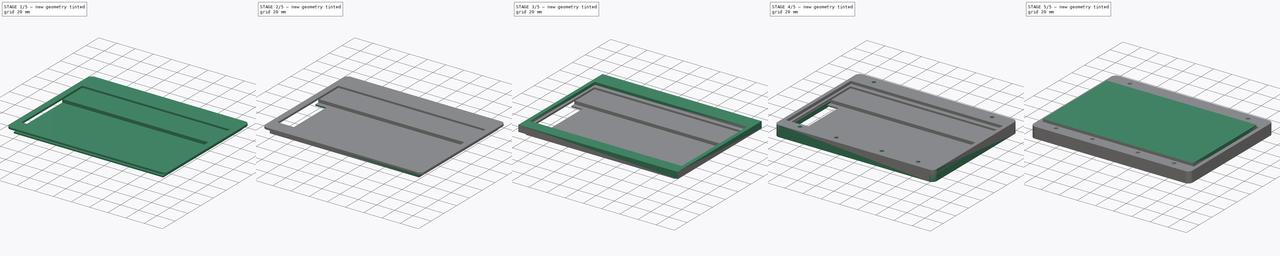
[diagram: build sequence overview — one tinted view per stage of 5, left to right]
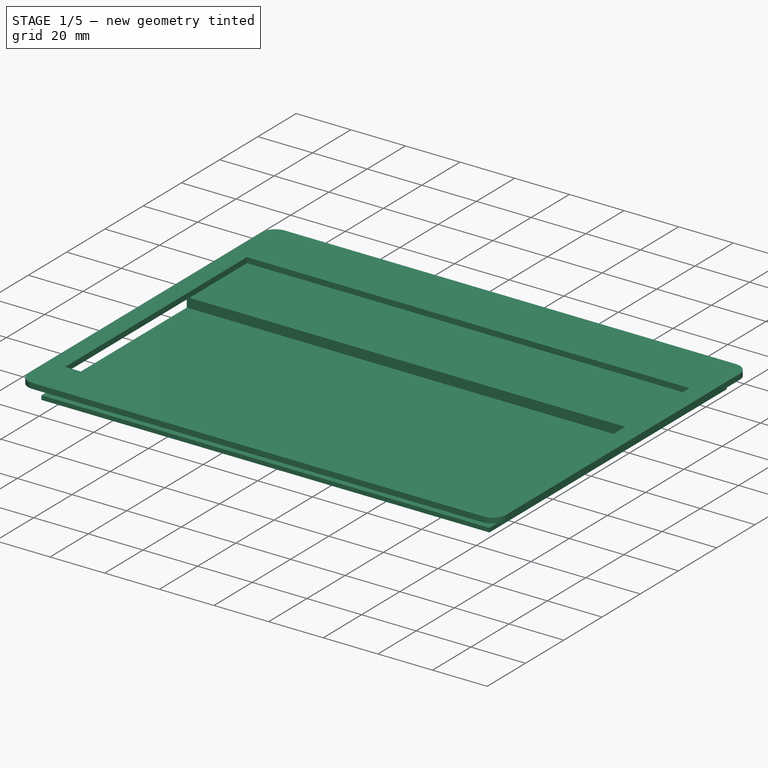
[diagram: stage 1 of 5 — iso view after this stage's code; geometry added in this stage tinted green]
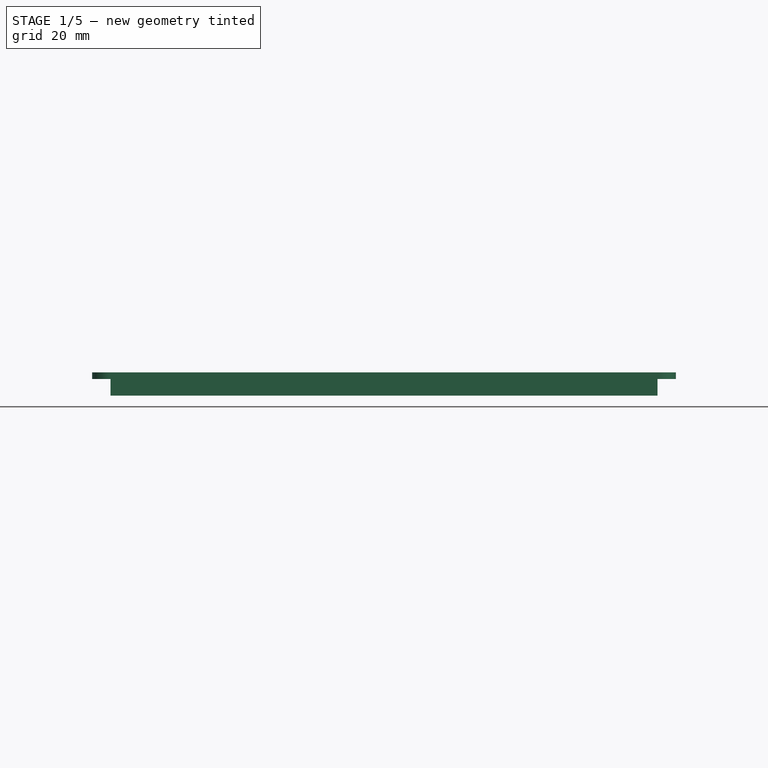
[diagram: stage 1 of 5 — front view after this stage's code; geometry added in this stage tinted green]
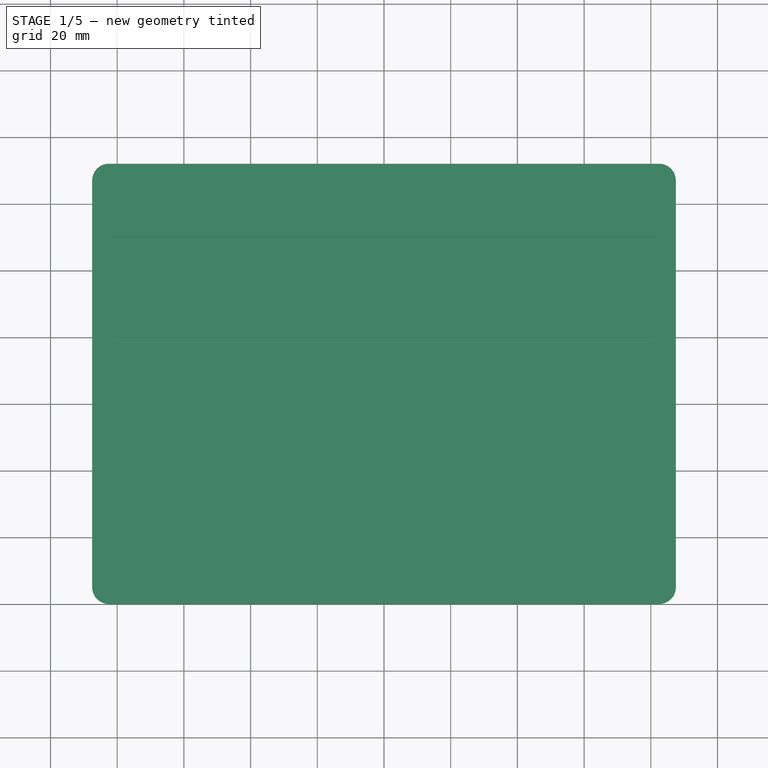
[diagram: stage 1 of 5 — top view after this stage's code; geometry added in this stage tinted green]
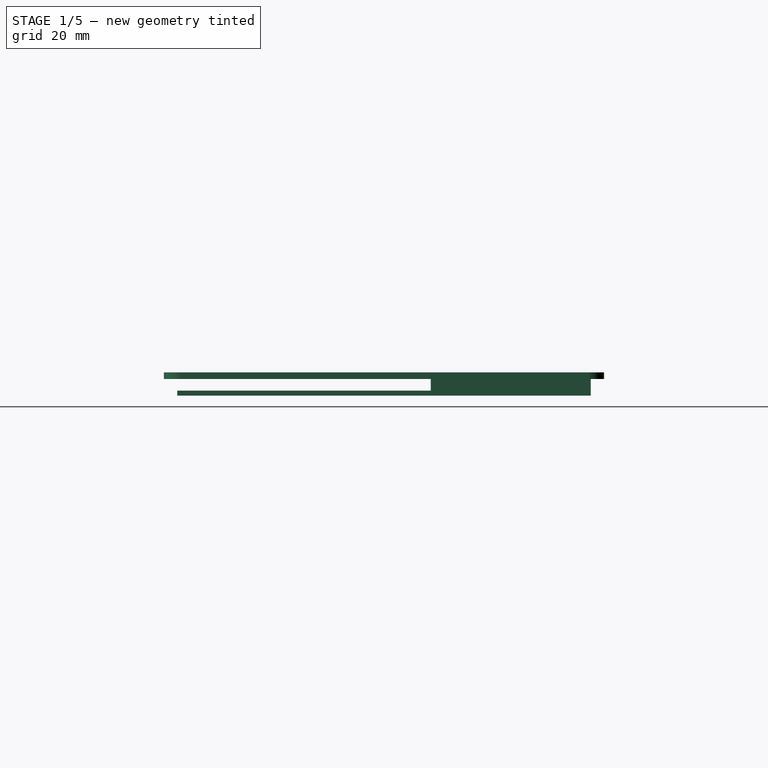
[diagram: stage 1 of 5 — right view after this stage's code; geometry added in this stage tinted green]
FCSTD DOCUMENT  (FreeCAD 1.0R39319 (Git))
Label: display
License: All rights reserved
LicenseURL: https://en.wikipedia.org/wiki/All_rights_reserved
objects: Sketcher::SketchObject×16, PartDesign::Pad×11, PartDesign::Pocket×5, PartDesign::Body×4, PartDesign::Fillet×2
note: 90 computed .brp shape members not serialized (recipe doc carries the construction recipe); baked Part::Feature solids carry a one-line shape summary decoded from their .brp

FEATURE [Sketcher::SketchObject] Sketch007
  ArcFitTolerance = 1e-06
  AttachmentSupport = -> [XY_Plane002]
  FullyConstrained = true
  MakeInternals = false
  MapMode = 5
  sketch-geometry (4):
    g0: LineSegment StartX=-82 StartY=0 StartZ=0 EndX=82 EndY=0 EndZ=0
    g1: LineSegment StartX=82 StartY=0 StartZ=0 EndX=82 EndY=48 EndZ=0
    g2: LineSegment StartX=82 StartY=48 StartZ=0 EndX=-82 EndY=48 EndZ=0
    g3: LineSegment StartX=-82 StartY=48 StartZ=0 EndX=-82 EndY=0 EndZ=0
  constraints (12):
    c: Coincident(g0,g1)
    c: Coincident(g1,g2)
    c: Coincident(g2,g3)
    c: Coincident(g3,g0)
    c: Horizontal(g0)
    c: Horizontal(g2)
    c: Vertical(g1)
    c: Vertical(g3)
    c: DistanceX(g2,g2) = 164
    c: Distance(g1,g-2) = 82
    c: Distance(g1,g-1) = 48
    c: DistanceY(g1,g1) = 48
FEATURE [PartDesign::Pad] Pad006
  Direction = (0,0,1)
  Length = 3.5
  Length2 = 10
  Profile = -> Sketch007
  ReferenceAxis = -> Sketch007 [N_Axis]
  Refine = true
  Reversed = true
  Suppressed = false
  Type = 0
FEATURE [Sketcher::SketchObject] Sketch008
  ArcFitTolerance = 1e-06
  AttachmentSupport = -> [Pad006]
  FullyConstrained = true
  MakeInternals = false
  MapMode = 5
  Placement = pos=(0,0,-3.5) rot=(1,0,0;3.14159rad)
  sketch-geometry (4):
    g0: LineSegment StartX=-82 StartY=76 StartZ=0 EndX=-82 EndY=-48 EndZ=0
    g1: LineSegment StartX=-82 StartY=-48 StartZ=0 EndX=82 EndY=-48 EndZ=0
    g2: LineSegment StartX=82 StartY=-48 StartZ=0 EndX=82 EndY=76 EndZ=0
    g3: LineSegment StartX=82 StartY=76 StartZ=0 EndX=-82 EndY=76 EndZ=0
  constraints (12):
    c: Coincident(g0,g1)
    c: Coincident(g1,g2)
    c: Coincident(g2,g3)
    c: Coincident(g3,g0)
    c: Vertical(g0)
    c: Vertical(g2)
    c: Horizontal(g1)
    c: Horizontal(g3)
    c: DistanceX(g1,g1) = 164
    c: Distance(g1,g-2) = 82
    c: Distance(g0,g-1) = 48
    c: DistanceY(g0,g0) = 124
FEATURE [PartDesign::Pad] Pad007
  BaseFeature = -> Pad006
  Direction = (0,0,-1)
  Length = 1.5
  Length2 = 10
  Profile = -> Sketch008
  ReferenceAxis = -> Sketch008 [N_Axis]
  Refine = true
  Suppressed = false
  Type = 0
FEATURE [PartDesign::Body] Body002  label="frame back"
  AllowCompound = false
  Group = -> [Sketch007,Pad006,Sketch008,Pad007,Sketch009,Pad008,Sketch010,Pocket001,Sketch012,Pocket003,Sketch013,Pocket004,Sketch014,Pad009]
  Origin = -> Origin002
  Placement = pos=(0,0,-2) rot=(0,0,1;0rad)
  Tip = -> Pad009
FEATURE [Sketcher::SketchObject] Sketch015
  ArcFitTolerance = 1e-06
  AttachmentSupport = -> [XY_Plane003]
  FullyConstrained = true
  MakeInternals = false
  MapMode = 5
  sketch-geometry (8):
    g0: LineSegment StartX=-87.5 StartY=52 StartZ=0 EndX=-87.5 EndY=-80 EndZ=0
    g1: LineSegment StartX=-87.5 StartY=-80 StartZ=0 EndX=87.5 EndY=-80 EndZ=0
    g2: LineSegment StartX=87.5 StartY=-80 StartZ=0 EndX=87.5 EndY=52 EndZ=0
    g3: LineSegment StartX=87.5 StartY=52 StartZ=0 EndX=-87.5 EndY=52 EndZ=0
    g4: LineSegment StartX=-81 StartY=30 StartZ=0 EndX=-81 EndY=-65 EndZ=0
    g5: LineSegment StartX=-81 StartY=-65 StartZ=0 EndX=81 EndY=-65 EndZ=0
    g6: LineSegment StartX=81 StartY=-65 StartZ=0 EndX=81 EndY=30 EndZ=0
    g7: LineSegment StartX=81 StartY=30 StartZ=0 EndX=-81 EndY=30 EndZ=0
  constraints (24):
    c: Coincident(g0,g1)
    c: Coincident(g1,g2)
    c: Coincident(g2,g3)
    c: Coincident(g3,g0)
    c: Vertical(g0)
    c: Vertical(g2)
    c: Horizontal(g1)
    c: Horizontal(g3)
    c: Distance(g0,g2) = 175
    c: Distance(g1,g3) = 132
    c: Distance(g0,g-2) = 87.5
    c: Distance(g0,g-1) = 52
    c: Coincident(g4,g5)
    c: Coincident(g5,g6)
    c: Coincident(g6,g7)
    c: Coincident(g7,g4)
    c: Vertical(g4)
    c: Vertical(g6)
    c: Horizontal(g5)
    c: Horizontal(g7)
    c: Distance(g4,g6) = 162
    c: Distance(g5,g7) = 95
    c: Distance(g4,g-2) = 81
    c: Distance(g6,g-1) = 30
FEATURE [PartDesign::Pad] Pad010
  Direction = (0,0,1)
  Length = 2
  Length2 = 10
  Profile = -> Sketch015
  ReferenceAxis = -> Sketch015 [N_Axis]
  Refine = true
  Suppressed = false
  Type = 0
FEATURE [PartDesign::Fillet] Fillet001
  Base = -> Pad010 [Edge5,Edge2,Edge8,Edge1]
  BaseFeature = -> Pad010
  Radius = 5
  Refine = true
  SupportTransform = false
  Suppressed = false
  UseAllEdges = false
FEATURE [PartDesign::Body] Body003  label="frame cover"
  AllowCompound = false
  Group = -> [Sketch015,Pad010,Fillet001]
  Origin = -> Origin003
  Placement = pos=(0,0,6) rot=(0,0,1;0rad)
  Tip = -> Fillet001
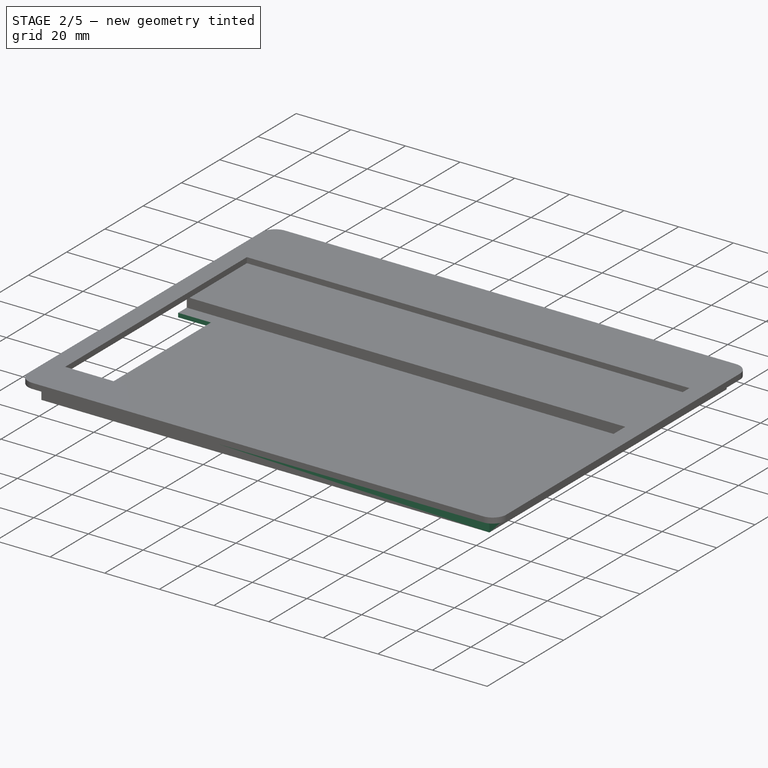
[diagram: stage 2 of 5 — iso view after this stage's code; geometry added in this stage tinted green]
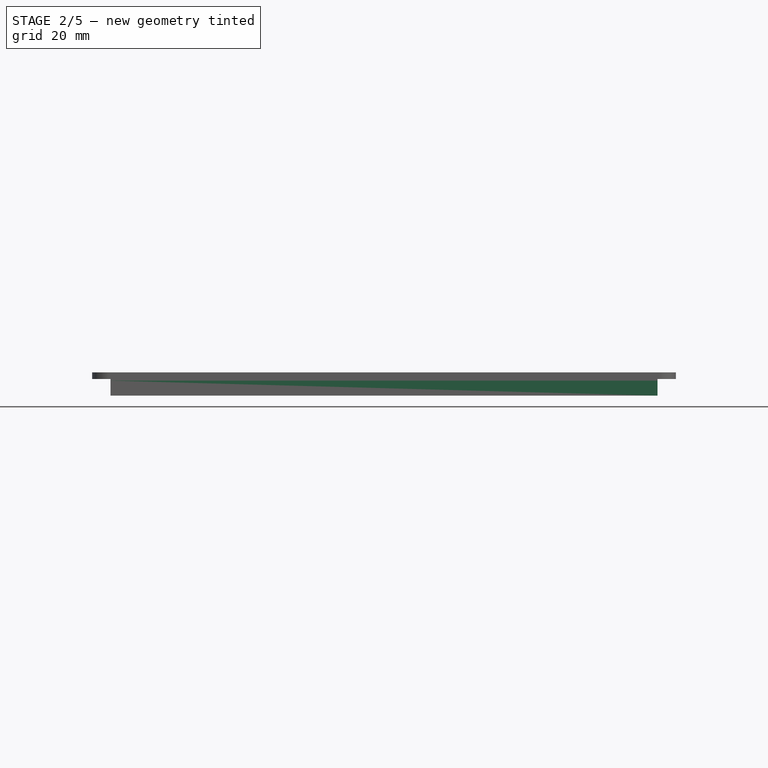
[diagram: stage 2 of 5 — front view after this stage's code; geometry added in this stage tinted green]
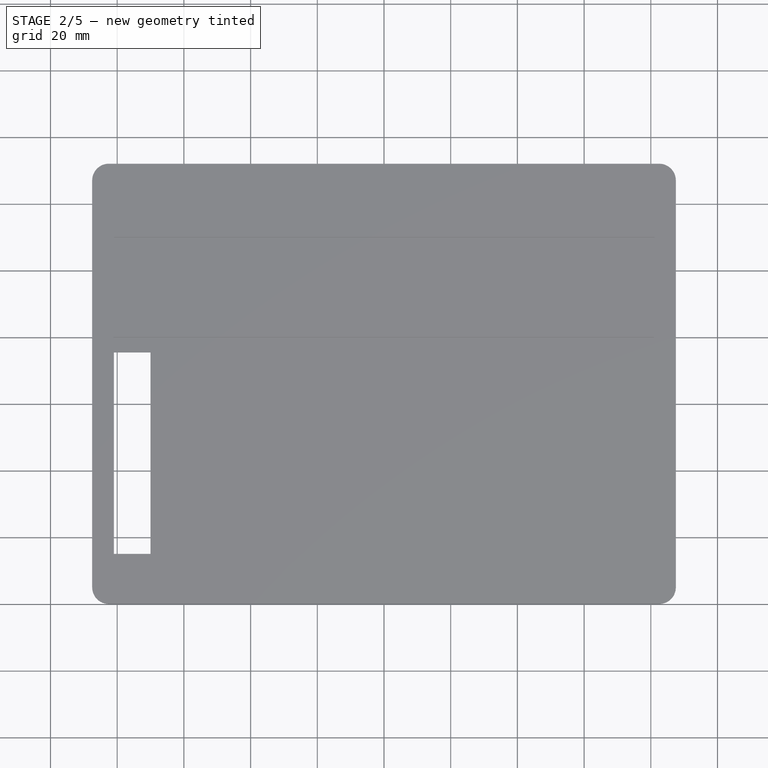
[diagram: stage 2 of 5 — top view after this stage's code; geometry added in this stage tinted green]
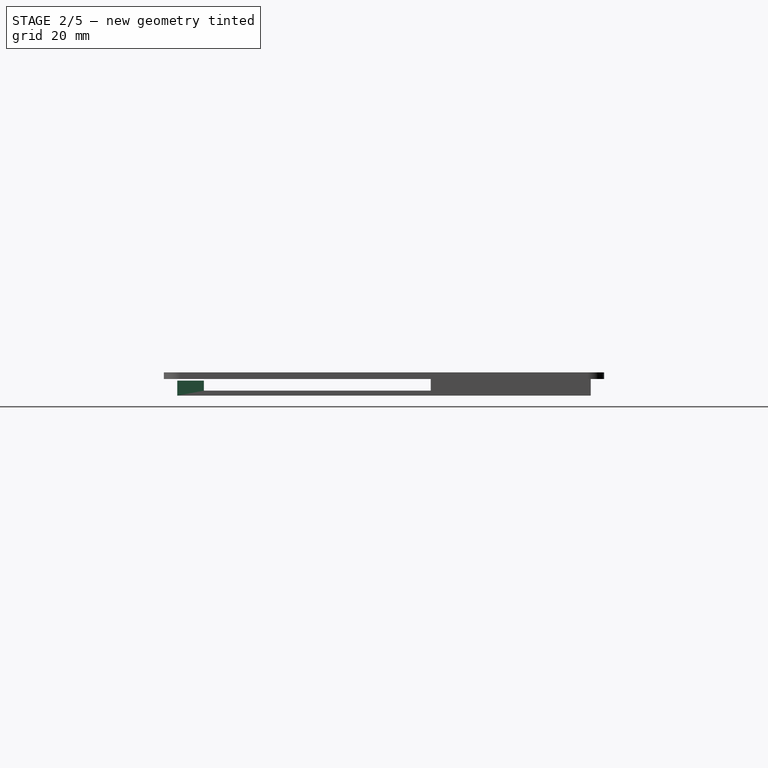
[diagram: stage 2 of 5 — right view after this stage's code; geometry added in this stage tinted green]
FEATURE [Sketcher::SketchObject] Sketch009
  ArcFitTolerance = 1e-06
  AttachmentSupport = -> [Pad007]
  FullyConstrained = true
  MakeInternals = false
  MapMode = 5
  Placement = pos=(0,0,-3.5) rot=(0,0,1;0rad)
  sketch-geometry (4):
    g0: LineSegment StartX=-82 StartY=-68 StartZ=0 EndX=-82 EndY=-76 EndZ=0
    g1: LineSegment StartX=-82 StartY=-76 StartZ=0 EndX=82 EndY=-76 EndZ=0
    g2: LineSegment StartX=82 StartY=-76 StartZ=0 EndX=82 EndY=-68 EndZ=0
    g3: LineSegment StartX=82 StartY=-68 StartZ=0 EndX=-82 EndY=-68 EndZ=0
  constraints (12):
    c: Coincident(g0,g1)
    c: Coincident(g1,g2)
    c: Coincident(g2,g3)
    c: Coincident(g3,g0)
    c: Vertical(g0)
    c: Vertical(g2)
    c: Horizontal(g1)
    c: Horizontal(g3)
    c: Distance(g0,g2) = 164
    c: Distance(g1,g3) = 8
    c: Distance(g1,g-2) = 82
    c: DistanceY(g1,g-1) = 76
FEATURE [PartDesign::Pad] Pad008
  BaseFeature = -> Pad007
  Direction = (0,0,1)
  Length = 3
  Length2 = 10
  Profile = -> Sketch009
  ReferenceAxis = -> Sketch009 [N_Axis]
  Refine = true
  Suppressed = false
  Type = 0
FEATURE [Sketcher::SketchObject] Sketch010
  ArcFitTolerance = 1e-06
  AttachmentSupport = -> [Pad008]
  FullyConstrained = true
  MakeInternals = false
  MapMode = 5
  Placement = pos=(0,0,-0.5) rot=(0,0,1;0rad)
  sketch-geometry (6):
    g0: Circle CenterX=-65 CenterY=-72 CenterZ=0 NormalX=0 NormalY=0 NormalZ=1 AngleXU=0 Radius=2
    g1: Circle CenterX=-25 CenterY=-72 CenterZ=0 NormalX=0 NormalY=0 NormalZ=1 AngleXU=0 Radius=2
    g2: Circle CenterX=25 CenterY=-72 CenterZ=0 NormalX=0 NormalY=0 NormalZ=1 AngleXU=0 Radius=2
    g3: Circle CenterX=65 CenterY=-72 CenterZ=0 NormalX=0 NormalY=0 NormalZ=1 AngleXU=0 Radius=2
    g4: Circle CenterX=-65 CenterY=44 CenterZ=0 NormalX=0 NormalY=0 NormalZ=1 AngleXU=0 Radius=2
    g5: Circle CenterX=65 CenterY=44 CenterZ=0 NormalX=0 NormalY=0 NormalZ=1 AngleXU=0 Radius=2
  constraints (18):
    c: Diameter(g0) = 4
    c: Diameter(g1) = 4
    c: Diameter(g2) = 4
    c: Diameter(g3) = 4
    c: Distance(g1,g-2) = 25
    c: Distance(g2,g-2) = 25
    c: Distance(g3,g-2) = 65
    c: Distance(g0,g-2) = 65
    c: DistanceY(g3,g-1) = 72
    c: DistanceY(g2,g-1) = 72
    c: DistanceY(g1,g-1) = 72
    c: DistanceY(g0,g-1) = 72
    c: Diameter(g4) = 4
    c: Diameter(g5) = 4
    c: DistanceX(g-1,g5) = 65
    c: DistanceY(g-1,g5) = 44
    c: DistanceY(g-1,g4) = 44
    c: DistanceX(g4,g-1) = 65
FEATURE [PartDesign::Pocket] Pocket001
  BaseFeature = -> Pad008
  Direction = (0,0,-1)
  Length = 9
  Length2 = 5
  Midplane = true
  Profile = -> Sketch010
  ReferenceAxis = -> Sketch010 [N_Axis]
  Refine = true
  Suppressed = false
  Type = 0
FEATURE [PartDesign::Body] Body001  label="frame front"
  AllowCompound = false
  Group = -> [Sketch003,Pad003,Sketch004,Pad004,Sketch005,Pad005,Fillet,Sketch006,Pocket,Sketch011,Pocket002]
  Origin = -> Origin001
  Tip = -> Pocket002
FEATURE [Sketcher::SketchObject] Sketch012
  ArcFitTolerance = 1e-06
  AttachmentSupport = -> [Pocket001]
  FullyConstrained = true
  MakeInternals = false
  MapMode = 5
  Placement = pos=(0,0,-5) rot=(1,0,0;3.14159rad)
  sketch-geometry (4):
    g0: LineSegment StartX=-82 StartY=67.5 StartZ=0 EndX=-82 EndY=4.5 EndZ=0
    g1: LineSegment StartX=-82 StartY=4.5 StartZ=0 EndX=-70 EndY=4.5 EndZ=0
    g2: LineSegment StartX=-70 StartY=4.5 StartZ=0 EndX=-70 EndY=67.5 EndZ=0
    g3: LineSegment StartX=-70 StartY=67.5 StartZ=0 EndX=-82 EndY=67.5 EndZ=0
  constraints (12):
    c: Coincident(g0,g1)
    c: Coincident(g1,g2)
    c: Coincident(g2,g3)
    c: Coincident(g3,g0)
    c: Vertical(g0)
    c: Vertical(g2)
    c: Horizontal(g1)
    c: Horizontal(g3)
    c: Distance(g0,g2) = 12
    c: DistanceY(g0,g0) = 63
    c: DistanceX(g2,g-1) = 70
    c: DistanceY(g-1,g1) = 4.5
FEATURE [PartDesign::Pocket] Pocket003
  BaseFeature = -> Pocket001
  Direction = (0,0,1)
  Length = 5
  Length2 = 5
  Profile = -> Sketch012
  ReferenceAxis = -> Sketch012 [N_Axis]
  Refine = true
  Suppressed = false
  Type = 0
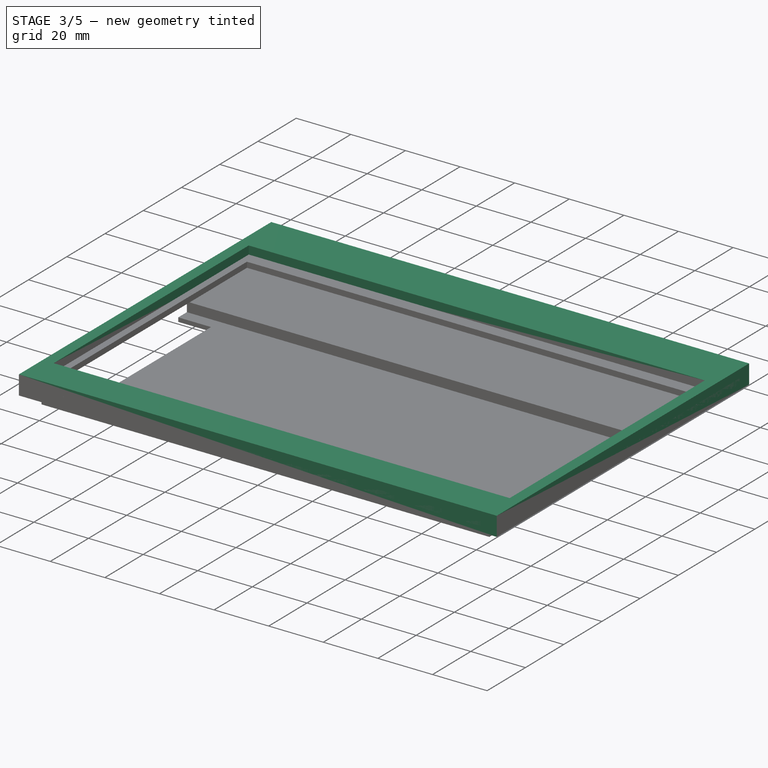
[diagram: stage 3 of 5 — iso view after this stage's code; geometry added in this stage tinted green]
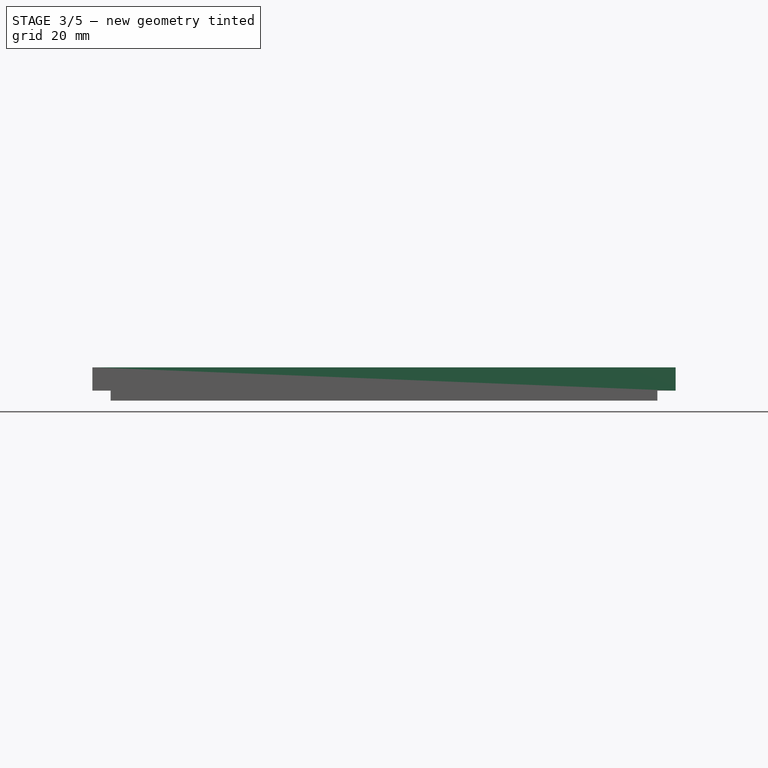
[diagram: stage 3 of 5 — front view after this stage's code; geometry added in this stage tinted green]
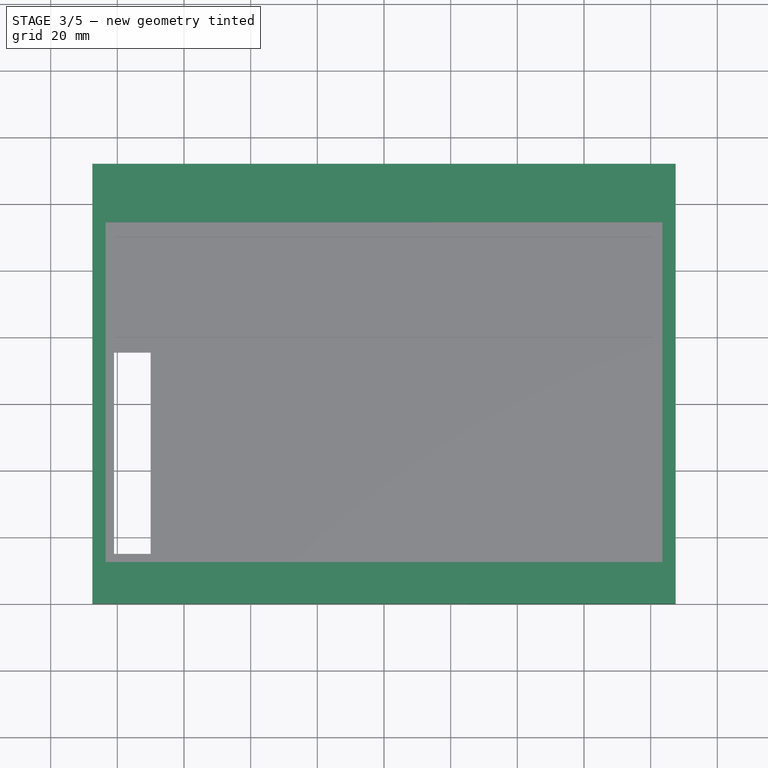
[diagram: stage 3 of 5 — top view after this stage's code; geometry added in this stage tinted green]
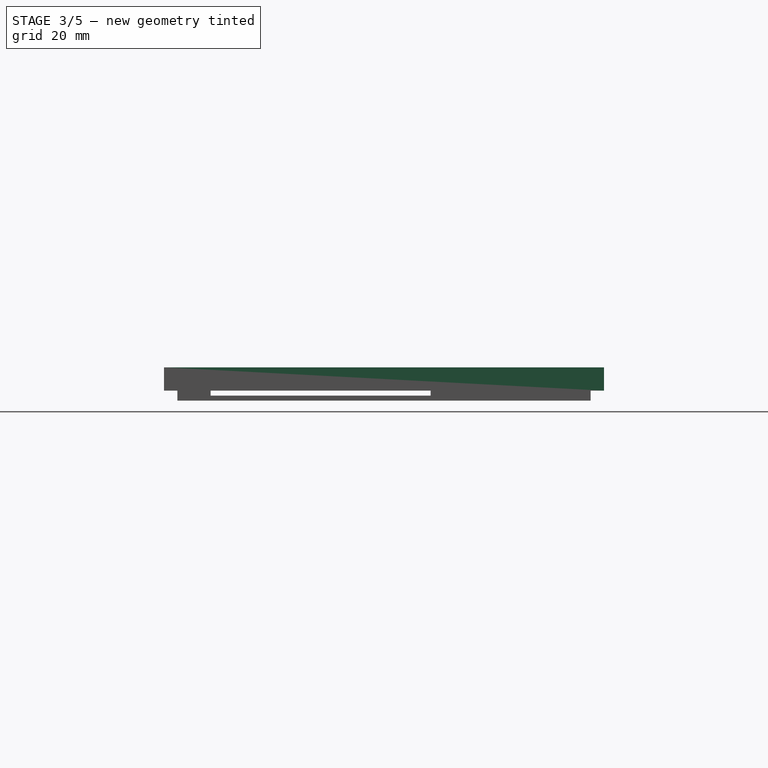
[diagram: stage 3 of 5 — right view after this stage's code; geometry added in this stage tinted green]
FEATURE [PartDesign::Body] Body  label="display"
  AllowCompound = false
  Group = -> [Sketch,Pad,Sketch001,Pad001,Sketch002,Pad002]
  Origin = -> Origin
  Tip = -> Pad002
FEATURE [Sketcher::SketchObject] Sketch003
  ArcFitTolerance = 1e-06
  AttachmentSupport = -> [XY_Plane001]
  FullyConstrained = true
  MakeInternals = false
  MapMode = 5
  sketch-geometry (8):
    g0: LineSegment StartX=-83.5 StartY=34.5 StartZ=0 EndX=-83.5 EndY=-67.5 EndZ=0
    g1: LineSegment StartX=-83.5 StartY=-67.5 StartZ=0 EndX=83.5 EndY=-67.5 EndZ=0
    g2: LineSegment StartX=83.5 StartY=-67.5 StartZ=0 EndX=83.5 EndY=34.5 EndZ=0
    g3: LineSegment StartX=83.5 StartY=34.5 StartZ=0 EndX=-83.5 EndY=34.5 EndZ=0
    g4: LineSegment StartX=-87.5 StartY=52 StartZ=0 EndX=-87.5 EndY=-80 EndZ=0
    g5: LineSegment StartX=-87.5 StartY=-80 StartZ=0 EndX=87.5 EndY=-80 EndZ=0
    g6: LineSegment StartX=87.5 StartY=-80 StartZ=0 EndX=87.5 EndY=52 EndZ=0
    g7: LineSegment StartX=87.5 StartY=52 StartZ=0 EndX=-87.5 EndY=52 EndZ=0
  constraints (24):
    c: Coincident(g0,g1)
    c: Coincident(g1,g2)
    c: Coincident(g2,g3)
    c: Coincident(g3,g0)
    c: Vertical(g0)
    c: Vertical(g2)
    c: Horizontal(g1)
    c: Horizontal(g3)
    c: DistanceX(g3,g3) = 167
    c: DistanceY(g0,g0) = 102
    c: Distance(g1,g-1) = 67.5
    c: Coincident(g4,g5)
    c: Coincident(g5,g6)
    c: Coincident(g6,g7)
    c: Coincident(g7,g4)
    c: Vertical(g4)
    c: Vertical(g6)
    c: Horizontal(g5)
    c: Horizontal(g7)
    c: DistanceX(g7,g7) = 175
    c: Distance(g6,g-2) = 87.5
    c: DistanceY(g4,g4) = 132
    c: Distance(g6,g-1) = 52
    c: Distance(g2,g-2) = 83.5
FEATURE [PartDesign::Pad] Pad003
  Direction = (0,0,1)
  Length = 5
  Length2 = 10
  Profile = -> Sketch003
  ReferenceAxis = -> Sketch003 [N_Axis]
  Refine = true
  Suppressed = false
  Type = 0
FEATURE [Sketcher::SketchObject] Sketch004
  ArcFitTolerance = 1e-06
  AttachmentSupport = -> [Pad003]
  FullyConstrained = true
  MakeInternals = false
  MapMode = 5
  Placement = pos=(0,0,0) rot=(1,0,0;3.14159rad)
  sketch-geometry (16):
    g0: LineSegment StartX=-74.5 StartY=67.5 StartZ=0 EndX=74.5 EndY=67.5 EndZ=0
    g1: LineSegment StartX=74.5 StartY=67.5 StartZ=0 EndX=74.5 EndY=76.5 EndZ=0
    g2: LineSegment StartX=-74.5 StartY=67.5 StartZ=0 EndX=-74.5 EndY=76.5 EndZ=0
    g3: LineSegment StartX=74.5 StartY=76.5 StartZ=0 EndX=83.5 EndY=76.5 EndZ=0
    g4: LineSegment StartX=-83.5 StartY=76.5 StartZ=0 EndX=-74.5 EndY=76.5 EndZ=0
    g5: LineSegment StartX=-83.5 StartY=76.5 StartZ=0 EndX=-83.5 EndY=-48.5 EndZ=0
    g6: LineSegment StartX=83.5 StartY=-48.5 StartZ=0 EndX=83.5 EndY=76.5 EndZ=0
    g7: LineSegment StartX=83.5 StartY=-48.5 StartZ=0 EndX=74.5 EndY=-48.5 EndZ=0
    g8: LineSegment StartX=-83.5 StartY=-48.5 StartZ=0 EndX=-74.5 EndY=-48.5 EndZ=0
    g9: LineSegment StartX=-74.5 StartY=-48.5 StartZ=0 EndX=-74.5 EndY=-39.5 EndZ=0
    g10: LineSegment StartX=74.5 StartY=-48.5 StartZ=0 EndX=74.5 EndY=-39.5 EndZ=0
    g11: LineSegment StartX=-74.5 StartY=-39.5 StartZ=0 EndX=74.5 EndY=-39.5 EndZ=0
    g12: LineSegment StartX=-87.5 StartY=80 StartZ=0 EndX=87.5 EndY=80 EndZ=0
    g13: LineSegment StartX=-87.5 StartY=80 StartZ=0 EndX=-87.5 EndY=-52 EndZ=0
    g14: LineSegment StartX=87.5 StartY=80 StartZ=0 EndX=87.5 EndY=-52 EndZ=0
    g15: LineSegment StartX=87.5 StartY=-52 StartZ=0 EndX=-87.5 EndY=-52 EndZ=0
  constraints (48):
    c: Horizontal(g0)
    c: Vertical(g1)
    c: Vertical(g2)
    c: Horizontal(g3)
    c: Horizontal(g4)
    c: Vertical(g5)
    c: Vertical(g6)
    c: Horizontal(g7)
    c: Horizontal(g8)
    c: Vertical(g9)
    c: Vertical(g10)
    c: Horizontal(g11)
    c: Horizontal(g12)
    c: Vertical(g13)
    c: Vertical(g14)
    c: Horizontal(g15)
    c: Coincident(g13,g12)
    c: Coincident(g12,g14)
    c: Coincident(g15,g14)
    c: Coincident(g15,g13)
    c: Distance(g12,g-1) = 80
    c: Distance(g12,g-2) = 87.5
    c: DistanceX(g12,g12) = 175
    c: DistanceY(g14,g14) = 132
    c: Coincident(g2,g0)
    c: Coincident(g2,g4)
    c: Coincident(g4,g5)
    c: Coincident(g0,g1)
    c: Coincident(g1,g3)
    c: Coincident(g3,g6)
    c: Distance(g0,g-1) = 67.5
    c: DistanceY(g1,g1) = 9
    c: DistanceY(g2,g2) = 9
    c: DistanceX(g4,g4) = 9
    c: DistanceX(g3,g3) = 9
    c: Coincident(g5,g8)
    c: Coincident(g8,g9)
    c: Coincident(g9,g11)
    c: Coincident(g10,g11)
    c: Coincident(g10,g7)
    c: Coincident(g6,g7)
    c: DistanceY(g6,g6) = 125
    c: DistanceY(g5,g5) = 125
    c: DistanceX(g8,g8) = 9
    c: Distance(g7,g7) = 9
    c: DistanceY(g9,g9) = 9
    c: Distance(g5,g-2) = 83.5
    c: DistanceX(g11,g11) = 149
FEATURE [PartDesign::Pad] Pad004
  BaseFeature = -> Pad003
  Direction = (0,0,-1)
  Length = 2
  Length2 = 10
  Profile = -> Sketch004
  ReferenceAxis = -> Sketch004 [N_Axis]
  Refine = true
  Suppressed = false
  Type = 0
FEATURE [Sketcher::SketchObject] Sketch013
  ArcFitTolerance = 1e-06
  AttachmentSupport = -> [Pocket003]
  FullyConstrained = true
  MakeInternals = false
  MapMode = 5
  Placement = pos=(0,0,-5) rot=(1,0,0;3.14159rad)
  sketch-geometry (6):
    g0: Circle CenterX=-65 CenterY=-44 CenterZ=0 NormalX=0 NormalY=0 NormalZ=1 AngleXU=0 Radius=3
    g1: Circle CenterX=65 CenterY=-44 CenterZ=0 NormalX=0 NormalY=0 NormalZ=1 AngleXU=0 Radius=3
    g2: Circle CenterX=25 CenterY=72 CenterZ=0 NormalX=0 NormalY=0 NormalZ=1 AngleXU=0 Radius=3
    g3: Circle CenterX=65 CenterY=72 CenterZ=0 NormalX=0 NormalY=0 NormalZ=1 AngleXU=0 Radius=3
    g4: Circle CenterX=-25 CenterY=72 CenterZ=0 NormalX=0 NormalY=0 NormalZ=1 AngleXU=0 Radius=3
    g5: Circle CenterX=-65 CenterY=72 CenterZ=0 NormalX=0 NormalY=0 NormalZ=1 AngleXU=0 Radius=3
  constraints (18):
    c: Diameter(g0) = 6
    c: Diameter(g1) = 6
    c: Diameter(g2) = 6
    c: Diameter(g3) = 6
    c: Diameter(g4) = 6
    c: Diameter(g5) = 6
    c: DistanceX(g-1,g1) = 65
    c: DistanceX(g0,g-1) = 65
    c: Distance(g1,g-1) = 44
    c: DistanceY(g0,g-1) = 44
    c: DistanceY(g-1,g5) = 72
    c: DistanceY(g-1,g4) = 72
    c: DistanceY(g-1,g2) = 72
    c: DistanceY(g-1,g3) = 72
    c: DistanceX(g5,g-1) = 65
    c: DistanceX(g-1,g3) = 65
    c: DistanceX(g4,g-1) = 25
    c: DistanceX(g-1,g2) = 25
FEATURE [PartDesign::Pocket] Pocket004
  BaseFeature = -> Pocket003
  Direction = (0,0,1)
  Length = 2
  Length2 = 5
  Profile = -> Sketch013
  ReferenceAxis = -> Sketch013 [N_Axis]
  Refine = true
  Suppressed = false
  Type = 0
FEATURE [Sketcher::SketchObject] Sketch014
  ArcFitTolerance = 1e-06
  AttachmentSupport = -> [Pocket004]
  FullyConstrained = true
  MakeInternals = false
  MapMode = 5
  Placement = pos=(0,-68,0) rot=(0,0.707107,0.707107;3.14159rad)
  sketch-geometry (4):
    g0: LineSegment StartX=-82 StartY=-0.5 StartZ=0 EndX=-82 EndY=-3.5 EndZ=0
    g1: LineSegment StartX=-82 StartY=-3.5 StartZ=0 EndX=67 EndY=-3.5 EndZ=0
    g2: LineSegment StartX=67 StartY=-3.5 StartZ=0 EndX=67 EndY=-0.5 EndZ=0
    g3: LineSegment StartX=67 StartY=-0.5 StartZ=0 EndX=-82 EndY=-0.5 EndZ=0
  constraints (12):
    c: Coincident(g0,g1)
    c: Coincident(g1,g2)
    c: Coincident(g2,g3)
    c: Coincident(g3,g0)
    c: Vertical(g0)
    c: Vertical(g2)
    c: Horizontal(g1)
    c: Horizontal(g3)
    c: DistanceY(g0,g0) = 3
    c: Distance(g0,g-1) = 0.5
    c: DistanceX(g3,g3) = 149
    c: DistanceX(g0,g-1) = 82
FEATURE [PartDesign::Pad] Pad009
  BaseFeature = -> Pocket004
  Direction = (0,1,-2e-16)
  Length = 2
  Length2 = 10
  Profile = -> Sketch014
  ReferenceAxis = -> Sketch014 [N_Axis]
  Refine = true
  Suppressed = false
  Type = 0
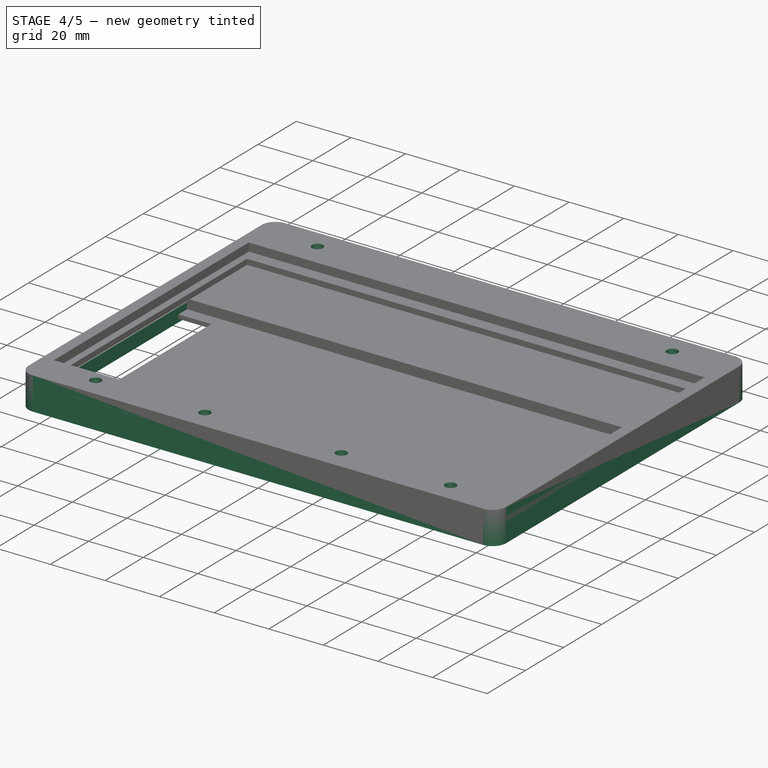
[diagram: stage 4 of 5 — iso view after this stage's code; geometry added in this stage tinted green]
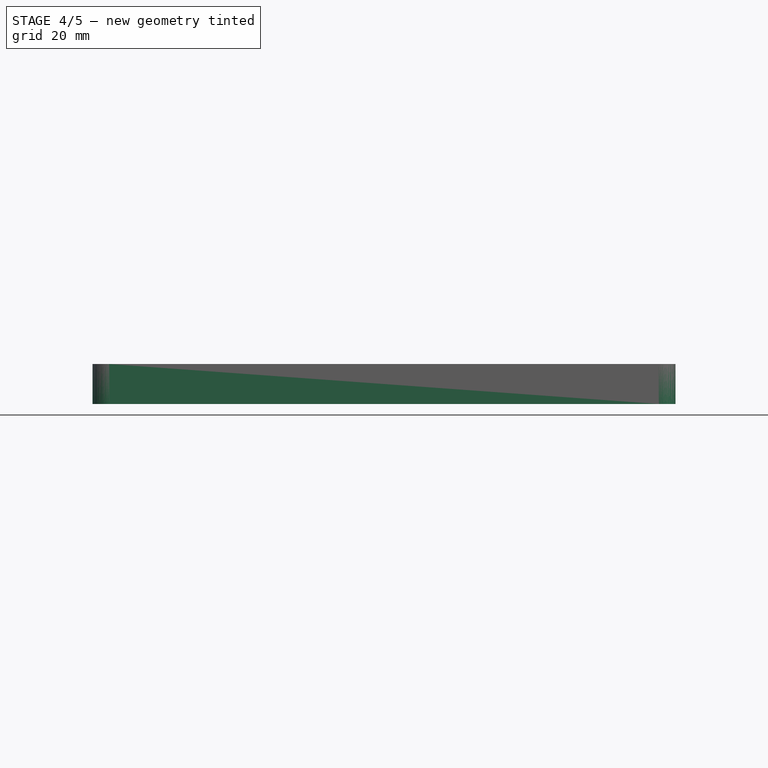
[diagram: stage 4 of 5 — front view after this stage's code; geometry added in this stage tinted green]
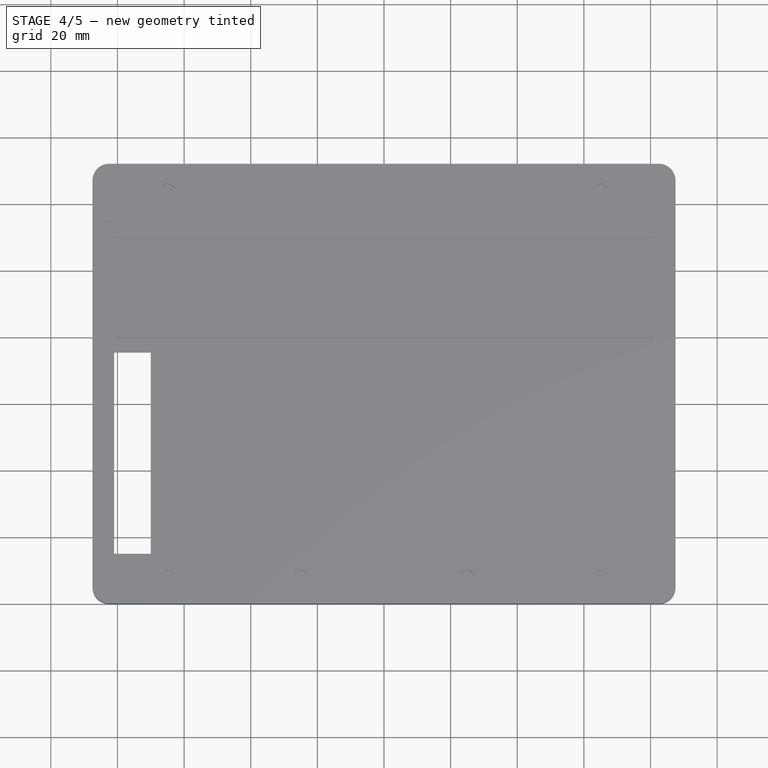
[diagram: stage 4 of 5 — top view after this stage's code; geometry added in this stage tinted green]
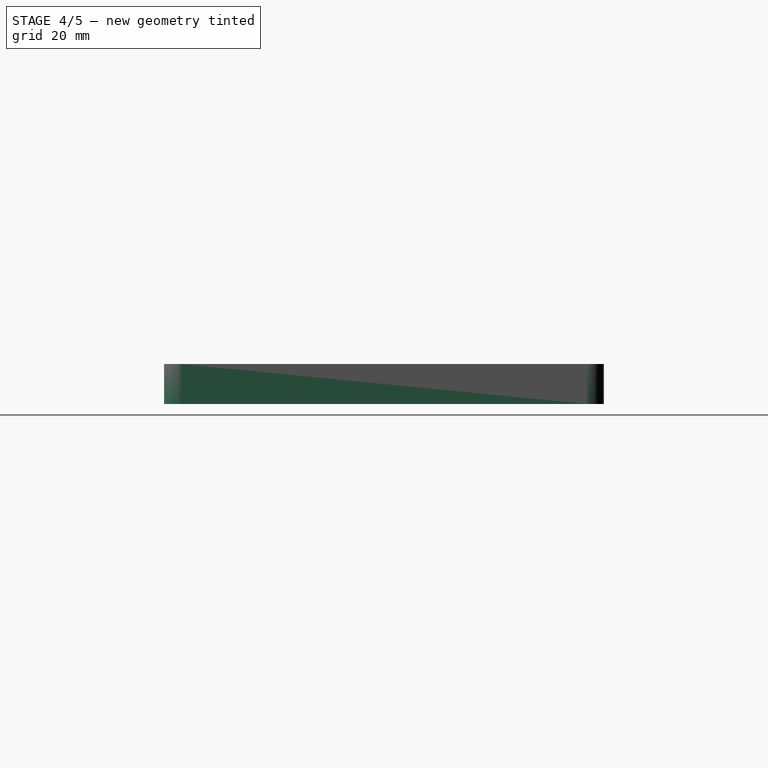
[diagram: stage 4 of 5 — right view after this stage's code; geometry added in this stage tinted green]
FEATURE [Sketcher::SketchObject] Sketch005
  ArcFitTolerance = 1e-06
  AttachmentSupport = -> [Pad004]
  FullyConstrained = true
  MakeInternals = false
  MapMode = 5
  Placement = pos=(0,0,-2) rot=(1,0,0;3.14159rad)
  sketch-geometry (8):
    g0: LineSegment StartX=-83 StartY=77 StartZ=0 EndX=-83 EndY=-49 EndZ=0
    g1: LineSegment StartX=-83 StartY=-49 StartZ=0 EndX=83 EndY=-49 EndZ=0
    g2: LineSegment StartX=83 StartY=-49 StartZ=0 EndX=83 EndY=77 EndZ=0
    g3: LineSegment StartX=83 StartY=77 StartZ=0 EndX=-83 EndY=77 EndZ=0
    g4: LineSegment StartX=-87.5 StartY=80 StartZ=0 EndX=-87.5 EndY=-52 EndZ=0
    g5: LineSegment StartX=-87.5 StartY=-52 StartZ=0 EndX=87.5 EndY=-52 EndZ=0
    g6: LineSegment StartX=87.5 StartY=-52 StartZ=0 EndX=87.5 EndY=80 EndZ=0
    g7: LineSegment StartX=87.5 StartY=80 StartZ=0 EndX=-87.5 EndY=80 EndZ=0
  constraints (24):
    c: Coincident(g0,g1)
    c: Coincident(g1,g2)
    c: Coincident(g2,g3)
    c: Coincident(g3,g0)
    c: Vertical(g0)
    c: Vertical(g2)
    c: Horizontal(g1)
    c: Horizontal(g3)
    c: Coincident(g4,g5)
    c: Coincident(g5,g6)
    c: Coincident(g6,g7)
    c: Coincident(g7,g4)
    c: Vertical(g4)
    c: Vertical(g6)
    c: Horizontal(g5)
    c: Horizontal(g7)
    c: DistanceX(g3,g3) = 166
    c: DistanceY(g0,g0) = 126
    c: DistanceY(g4,g4) = 132
    c: DistanceX(g7,g7) = 175
    c: Distance(g4,g-2) = 87.5
    c: Distance(g4,g-1) = 80
    c: Distance(g2,g-1) = 77
    c: Distance(g2,g-2) = 83
FEATURE [PartDesign::Pad] Pad005
  BaseFeature = -> Pad004
  Direction = (0,0,-1)
  Length = 5
  Length2 = 10
  Profile = -> Sketch005
  ReferenceAxis = -> Sketch005 [N_Axis]
  Refine = true
  Suppressed = false
  Type = 0
FEATURE [PartDesign::Fillet] Fillet
  Base = -> Pad005 [Edge80,Edge79,Edge77,Edge78]
  BaseFeature = -> Pad005
  Radius = 5
  Refine = true
  SupportTransform = false
  Suppressed = false
  UseAllEdges = false
FEATURE [Sketcher::SketchObject] Sketch006
  ArcFitTolerance = 1e-06
  AttachmentSupport = -> [Fillet]
  FullyConstrained = true
  MakeInternals = false
  MapMode = 5
  Placement = pos=(0,0,-2) rot=(1,0,0;3.14159rad)
  sketch-geometry (6):
    g0: Circle CenterX=-65 CenterY=72 CenterZ=0 NormalX=0 NormalY=0 NormalZ=1 AngleXU=0 Radius=2
    g1: Circle CenterX=65 CenterY=72 CenterZ=0 NormalX=0 NormalY=0 NormalZ=1 AngleXU=0 Radius=2
    g2: Circle CenterX=-65 CenterY=-44 CenterZ=0 NormalX=0 NormalY=0 NormalZ=1 AngleXU=0 Radius=2
    g3: Circle CenterX=65 CenterY=-44 CenterZ=0 NormalX=0 NormalY=0 NormalZ=1 AngleXU=0 Radius=2
    g4: Circle CenterX=-25 CenterY=72 CenterZ=0 NormalX=0 NormalY=0 NormalZ=1 AngleXU=0 Radius=2
    g5: Circle CenterX=25 CenterY=72 CenterZ=0 NormalX=0 NormalY=0 NormalZ=1 AngleXU=0 Radius=2
  constraints (18):
    c: Diameter(g0) = 4
    c: Diameter(g1) = 4
    c: Diameter(g2) = 4
    c: Diameter(g3) = 4
    c: DistanceY(g-1,g0) = 72
    c: DistanceY(g2,g-1) = 44
    c: DistanceY(g3,g-1) = 44
    c: DistanceY(g-1,g1) = 72
    c: DistanceX(g-1,g3) = 65
    c: DistanceX(g2,g-1) = 65
    c: DistanceX(g0,g-1) = 65
    c: DistanceX(g-1,g1) = 65
    c: Diameter(g4) = 4
    c: Diameter(g5) = 4
    c: Distance(g4,g-2) = 25
    c: Distance(g5,g-2) = 25
    c: Distance(g5,g-1) = 72
    c: Distance(g4,g-1) = 72
FEATURE [PartDesign::Pocket] Pocket
  BaseFeature = -> Fillet
  Direction = (0,0,1)
  Length = 7
  Length2 = 5
  Profile = -> Sketch006
  ReferenceAxis = -> Sketch006 [N_Axis]
  Refine = true
  Suppressed = false
  Type = 0
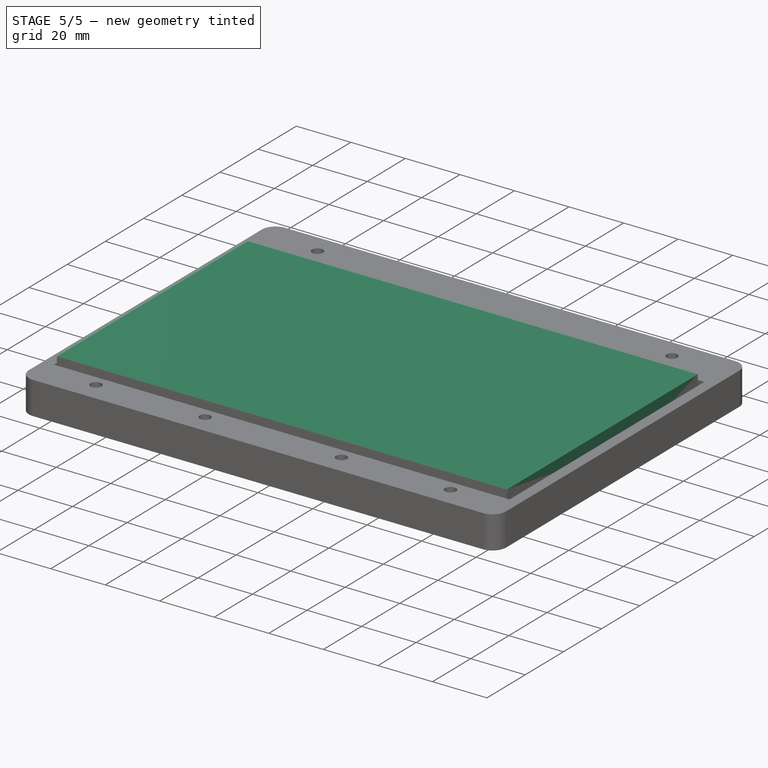
[diagram: stage 5 of 5 — iso view after this stage's code; geometry added in this stage tinted green]
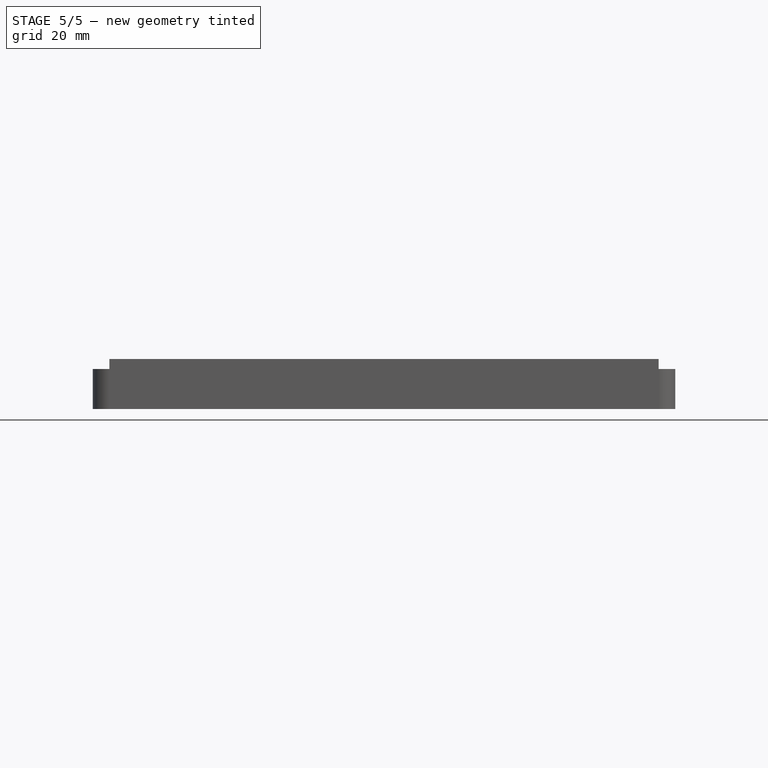
[diagram: stage 5 of 5 — front view after this stage's code; geometry added in this stage tinted green]
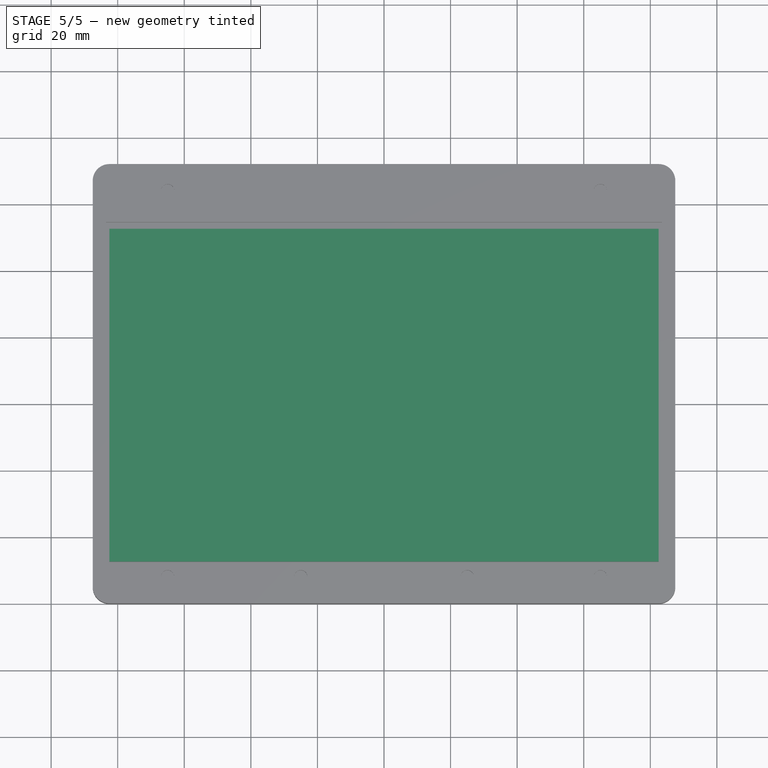
[diagram: stage 5 of 5 — top view after this stage's code; geometry added in this stage tinted green]
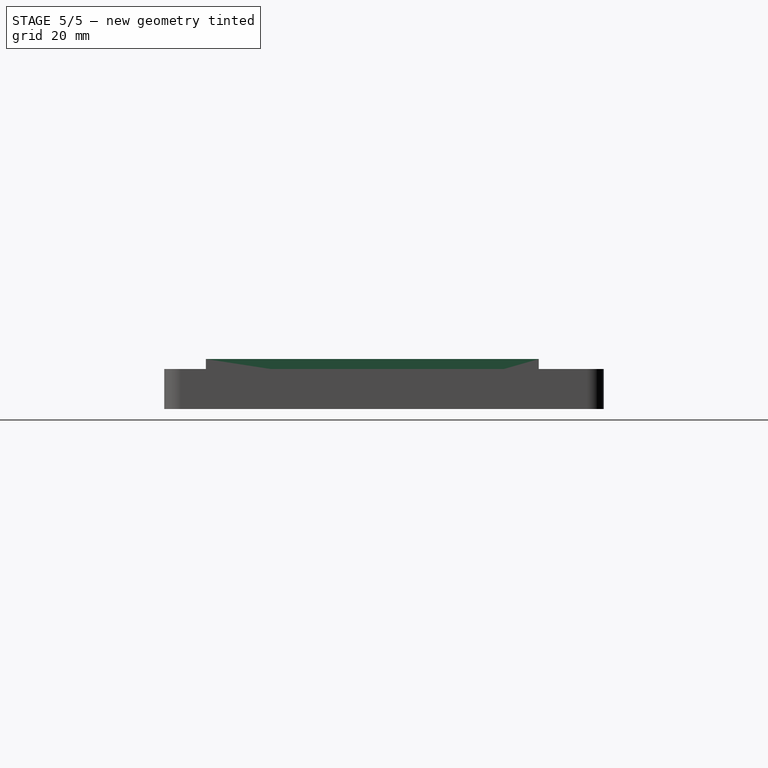
[diagram: stage 5 of 5 — right view after this stage's code; geometry added in this stage tinted green]
FEATURE [Sketcher::SketchObject] Sketch
  ArcFitTolerance = 1e-06
  AttachmentSupport = -> [XY_Plane]
  FullyConstrained = true
  MakeInternals = false
  MapMode = 5
  sketch-geometry (4):
    g0: LineSegment StartX=-82.5 StartY=32.5 StartZ=0 EndX=-82.5 EndY=-67.5 EndZ=0
    g1: LineSegment StartX=-82.5 StartY=-67.5 StartZ=0 EndX=82.5 EndY=-67.5 EndZ=0
    g2: LineSegment StartX=82.5 StartY=-67.5 StartZ=0 EndX=82.5 EndY=32.5 EndZ=0
    g3: LineSegment StartX=82.5 StartY=32.5 StartZ=0 EndX=-82.5 EndY=32.5 EndZ=0
  constraints (12):
    c: Coincident(g0,g1)
    c: Coincident(g1,g2)
    c: Coincident(g2,g3)
    c: Coincident(g3,g0)
    c: Vertical(g0)
    c: Vertical(g2)
    c: Horizontal(g1)
    c: Horizontal(g3)
    c: Distance(g0,g2) = 165
    c: Distance(g1,g3) = 100
    c: Distance(g0,g-2) = 82.5
    c: Distance(g2,g-1) = 32.5
FEATURE [PartDesign::Pad] Pad
  Direction = (0,0,1)
  Length = 8
  Length2 = 10
  Profile = -> Sketch
  ReferenceAxis = -> Sketch [N_Axis]
  Refine = true
  Suppressed = false
  Type = 0
FEATURE [Sketcher::SketchObject] Sketch001
  ArcFitTolerance = 1e-06
  AttachmentSupport = -> [Pad]
  FullyConstrained = true
  MakeInternals = false
  MapMode = 5
  Placement = pos=(0,0,0) rot=(1,0,0;3.14159rad)
  sketch-geometry (16):
    g0: LineSegment StartX=-82.5 StartY=76.5 StartZ=0 EndX=-82.5 EndY=-48.5 EndZ=0
    g1: LineSegment StartX=82.5 StartY=-48.5 StartZ=0 EndX=82.5 EndY=76.5 EndZ=0
    g2: LineSegment StartX=-82.5 StartY=76.5 StartZ=0 EndX=-74.5 EndY=76.5 EndZ=0
    g3: LineSegment StartX=82.5 StartY=76.5 StartZ=0 EndX=74.5 EndY=76.5 EndZ=0
    g4: LineSegment StartX=-74.5 StartY=76.5 StartZ=0 EndX=-74.5 EndY=67.5 EndZ=0
    g5: LineSegment StartX=74.5 StartY=76.5 StartZ=0 EndX=74.5 EndY=67.5 EndZ=0
    g6: LineSegment StartX=-74.5 StartY=67.5 StartZ=0 EndX=74.5 EndY=67.5 EndZ=0
    g7: LineSegment StartX=-82.5 StartY=-48.5 StartZ=0 EndX=-74.5 EndY=-48.5 EndZ=0
    g8: LineSegment StartX=82.5 StartY=-48.5 StartZ=0 EndX=74.5 EndY=-48.5 EndZ=0
    g9: LineSegment StartX=-74.5 StartY=-48.5 StartZ=0 EndX=-74.5 EndY=-39.5 EndZ=0
    g10: LineSegment StartX=74.5 StartY=-48.5 StartZ=0 EndX=74.5 EndY=-39.5 EndZ=0
    g11: LineSegment StartX=-74.5 StartY=-39.5 StartZ=0 EndX=74.5 EndY=-39.5 EndZ=0
    g12: Circle CenterX=-78.5 CenterY=71.5 CenterZ=0 NormalX=0 NormalY=0 NormalZ=1 AngleXU=0 Radius=2
    g13: Circle CenterX=78.5 CenterY=71.5 CenterZ=0 NormalX=0 NormalY=0 NormalZ=1 AngleXU=0 Radius=2
    g14: Circle CenterX=-78.5 CenterY=-43.5 CenterZ=0 NormalX=0 NormalY=0 NormalZ=1 AngleXU=0 Radius=2
    g15: Circle CenterX=78.5 CenterY=-43.5 CenterZ=0 NormalX=0 NormalY=0 NormalZ=1 AngleXU=0 Radius=2
  constraints (48):
    c: Vertical(g0)
    c: Vertical(g1)
    c: Distance(g0,g1) = 165
    c: Distance(g0,g0) = 125
    c: Distance(g1,g-1) = 76.5
    c: Distance(g0,g-2) = 82.5
    c: Equal(g0,g1)
    c: Distance(g2) = 8
    c: Coincident(g2,g0)
    c: Horizontal(g2)
    c: Coincident(g3,g1)
    c: Equal(g2,g3)
    c: Parallel(g3,g2)
    c: Distance(g4) = 9
    c: Coincident(g4,g2)
    c: Vertical(g4)
    c: Coincident(g5,g3)
    c: Vertical(g5)
    c: Equal(g4,g5)
    c: Coincident(g6,g4)
    c: Coincident(g6,g5)
    c: Distance(g0,g-1) = 76.5
    c: Distance(g7) = 8
    c: Coincident(g7,g0)
    c: Horizontal(g7)
    c: Distance(g8) = 8
    c: Coincident(g8,g1)
    c: Horizontal(g8)
    c: Distance(g9) = 9
    c: Coincident(g9,g7)
    c: Vertical(g9)
    c: Distance(g10) = 9
    c: Coincident(g10,g8)
    c: Vertical(g10)
    c: Coincident(g11,g9)
    c: Coincident(g11,g10)
    c: Diameter(g12) = 4
    c: DistanceY(g4,g12) = 4
    c: DistanceX(g12,g2) = 4
    c: Diameter(g13) = 4
    c: DistanceX(g3,g13) = 4
    c: DistanceY(g5,g13) = 4
    c: Diameter(g14) = 4
    c: Diameter(g15) = 4
    c: DistanceY(g14,g9) = 4
    c: DistanceX(g0,g14) = 4
    c: DistanceX(g15,g1) = 4
    c: DistanceY(g15,g10) = 4
FEATURE [PartDesign::Pad] Pad001
  BaseFeature = -> Pad
  Direction = (0,0,-1)
  Length = 2
  Length2 = 10
  Profile = -> Sketch001
  ReferenceAxis = -> Sketch001 [N_Axis]
  Refine = true
  Suppressed = false
  Type = 0
FEATURE [Sketcher::SketchObject] Sketch002
  ArcFitTolerance = 1e-06
  AttachmentSupport = -> [Pad001]
  FullyConstrained = true
  MakeInternals = false
  MapMode = 5
  Placement = pos=(0,0,-2) rot=(1,0,0;3.14159rad)
  sketch-geometry (4):
    g0: LineSegment StartX=-82.5 StartY=67.5 StartZ=0 EndX=-82.5 EndY=2.5 EndZ=0
    g1: LineSegment StartX=-82.5 StartY=2.5 StartZ=0 EndX=82.5 EndY=2.5 EndZ=0
    g2: LineSegment StartX=82.5 StartY=2.5 StartZ=0 EndX=82.5 EndY=67.5 EndZ=0
    g3: LineSegment StartX=82.5 StartY=67.5 StartZ=0 EndX=-82.5 EndY=67.5 EndZ=0
  constraints (12):
    c: Coincident(g0,g1)
    c: Coincident(g1,g2)
    c: Coincident(g2,g3)
    c: Coincident(g3,g0)
    c: Vertical(g0)
    c: Vertical(g2)
    c: Horizontal(g1)
    c: Horizontal(g3)
    c: Distance(g1,g3) = 65
    c: DistanceX(g3,g3) = 165
    c: Distance(g0,g-2) = 82.5
    c: Distance(g2,g-1) = 67.5
FEATURE [PartDesign::Pad] Pad002
  BaseFeature = -> Pad001
  Direction = (0,0,-1)
  Length = 3
  Length2 = 10
  Profile = -> Sketch002
  ReferenceAxis = -> Sketch002 [N_Axis]
  Refine = true
  Suppressed = false
  Type = 0
FEATURE [Sketcher::SketchObject] Sketch011
  ArcFitTolerance = 1e-06
  AttachmentSupport = -> [Pocket]
  FullyConstrained = true
  MakeInternals = false
  MapMode = 5
  Placement = pos=(-87.5,0,0) rot=(0.57735,-0.57735,-0.57735;2.0944rad)
  sketch-geometry (4):
    g0: LineSegment StartX=20.5 StartY=0 StartZ=0 EndX=20.5 EndY=-7 EndZ=0
    g1: LineSegment StartX=20.5 StartY=-7 StartZ=0 EndX=67.5 EndY=-7 EndZ=0
    g2: LineSegment StartX=67.5 StartY=-7 StartZ=0 EndX=67.5 EndY=0 EndZ=0
    g3: LineSegment StartX=67.5 StartY=0 StartZ=0 EndX=20.5 EndY=0 EndZ=0
  constraints (12):
    c: Coincident(g0,g1)
    c: Coincident(g1,g2)
    c: Coincident(g2,g3)
    c: Coincident(g3,g0)
    c: Vertical(g0)
    c: Vertical(g2)
    c: Horizontal(g1)
    c: Horizontal(g3)
    c: Distance(g0,g2) = 47
    c: Distance(g1,g3) = 7
    c: PointOnObject(g0,g-1)
    c: Distance(g0,g-2) = 20.5
FEATURE [PartDesign::Pocket] Pocket002
  BaseFeature = -> Pocket
  Direction = (1,0,0)
  Length = 6
  Length2 = 5
  Profile = -> Sketch011
  ReferenceAxis = -> Sketch011 [N_Axis]
  Refine = true
  Suppressed = false
  Type = 0
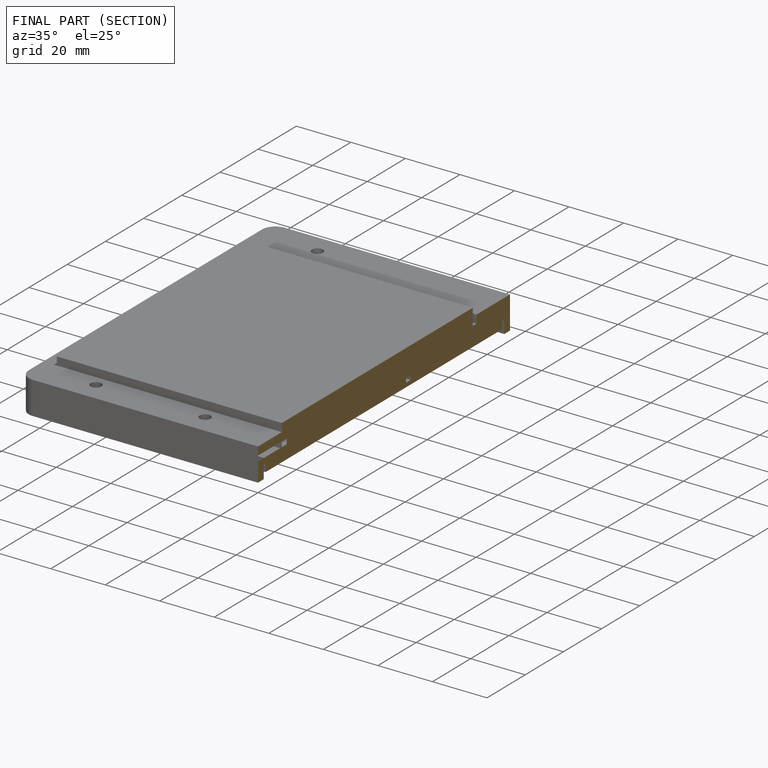
[diagram: finished part — half-section view (interior)]
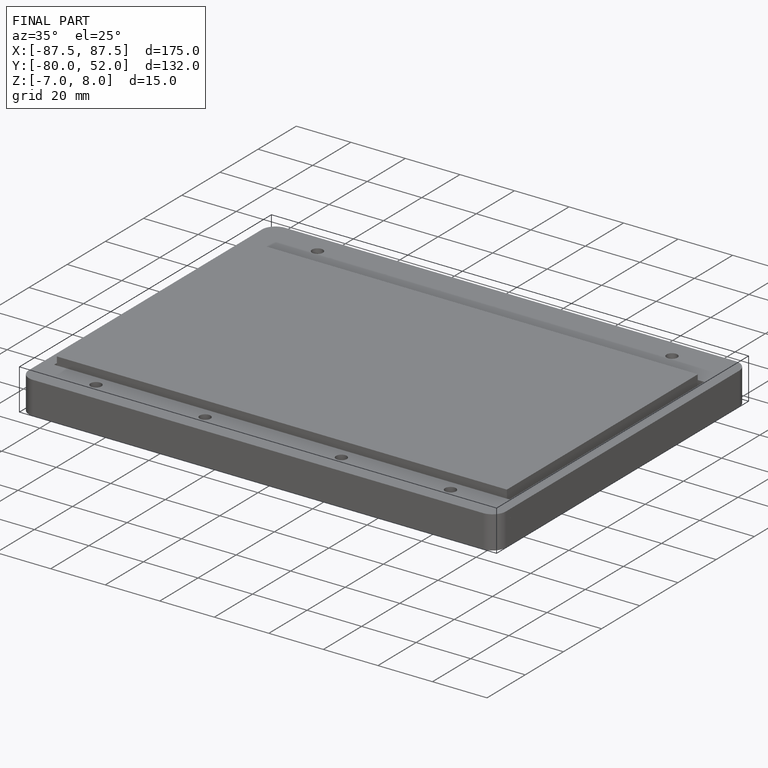
[diagram: finished part — iso view with bounding-box wireframe]
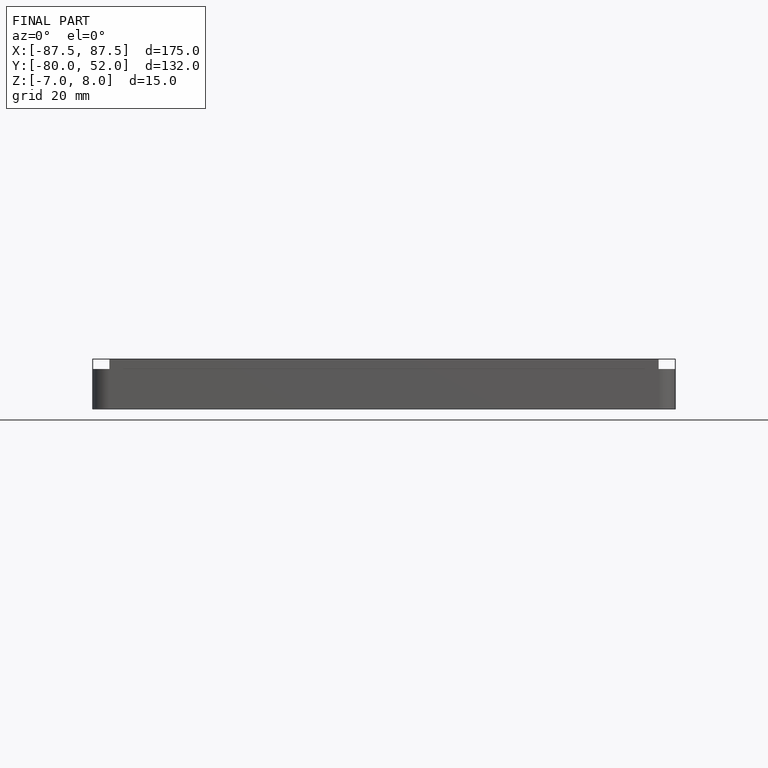
[diagram: finished part — front view with bounding-box wireframe]
